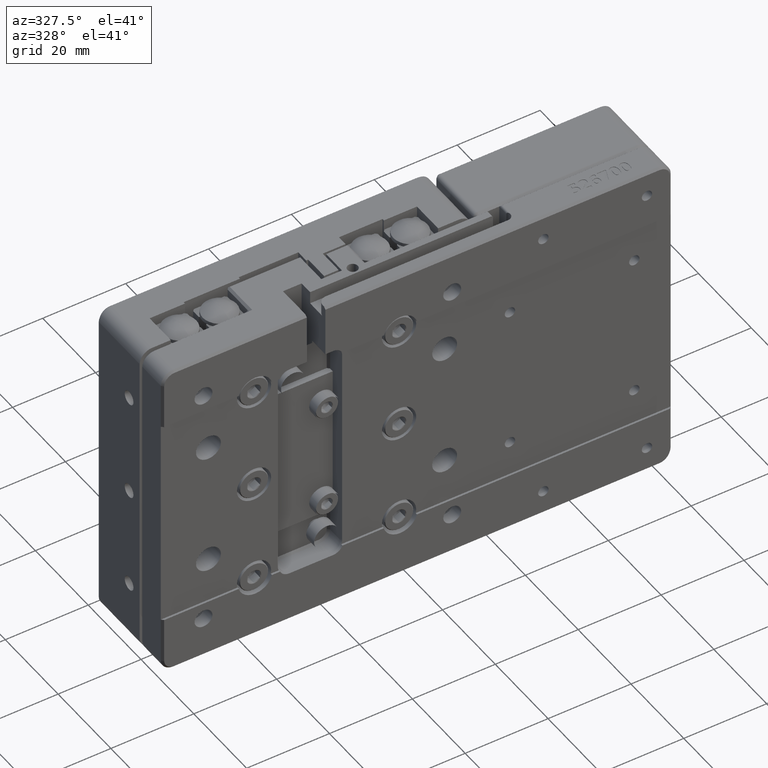
[diagram: clean part render]
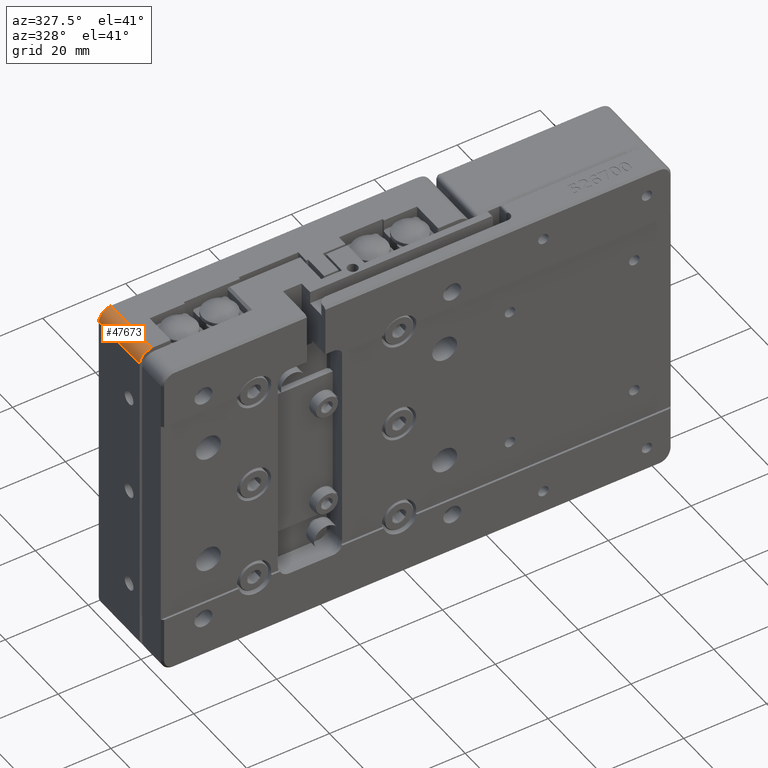
[diagram: same view with one face highlighted and labeled with its STEP entity id]
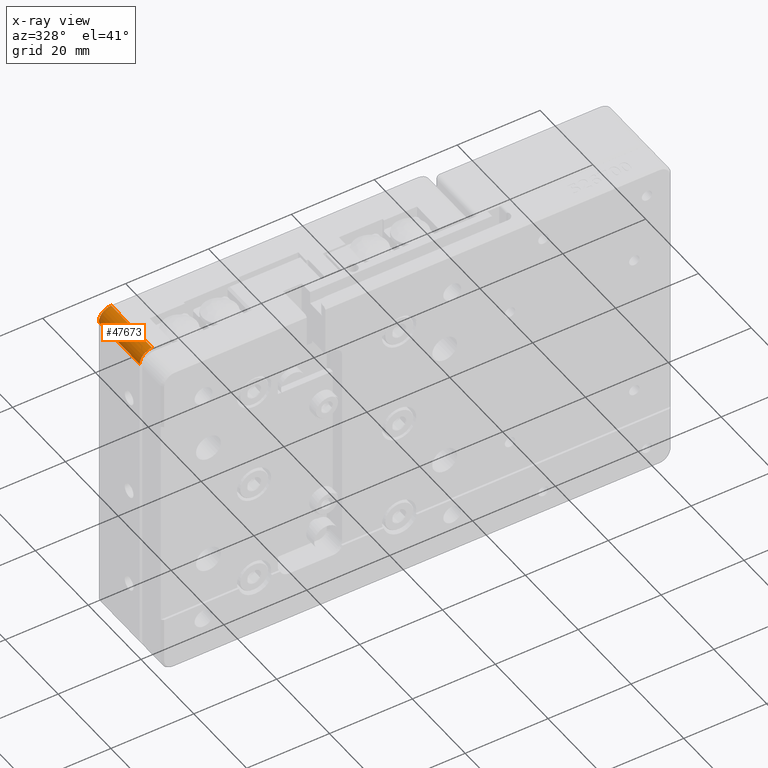
[diagram: x-ray of the same camera — body ghosted, the highlighted face saturated]
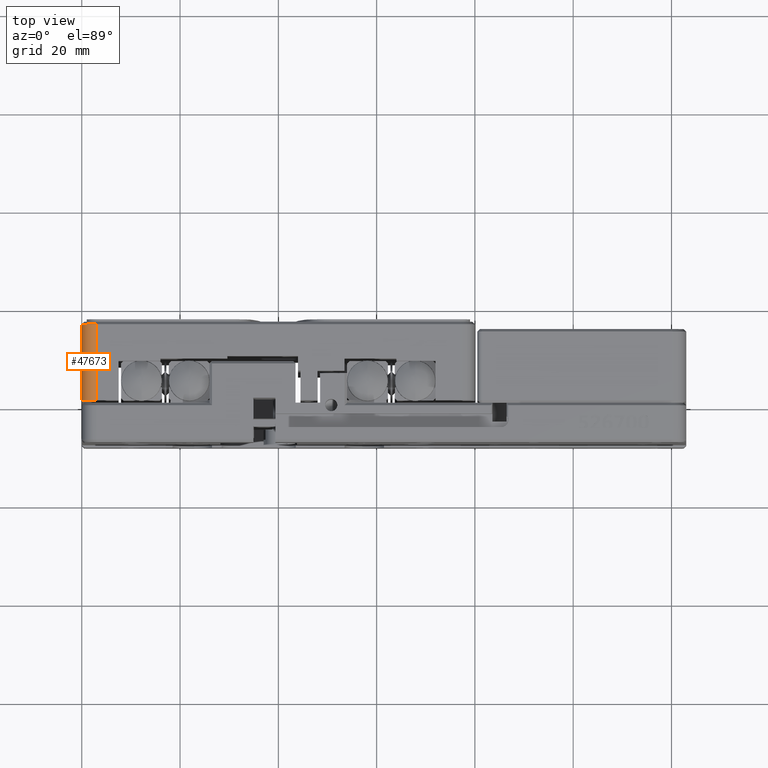
[diagram: same view with one face highlighted and labeled with its STEP entity id]
A machine part, auxiliary view. The second image highlights one B-rep face of the part: STEP entity #47673.
The next image is the same camera in x-ray: the body ghosted, the highlighted face saturated — about 0% of this face is hidden behind the body in this view.
A second angle (top view) of the same face is appended — the face is thin or edge-on in the first view.
In plain terms, the highlighted cylindrical surface (edge-blend (fillet) strip) has radius 3 mm, axis along (0, -1, 0).
Its self-contained STEP definition (entity closure, byte-faithful):
#45 = DIRECTION ( 'NONE',  ( 5.782411586589358600E-016, -1.000000000000000000, 0.0000000000000000000 ) ) ;
#2273 = EDGE_CURVE ( 'NONE', #65021, #34884, #54957, .T. ) ;
#3731 = CARTESIAN_POINT ( 'NONE',  ( -39.62135917171548300, 0.4999999999999988300, 38.51085692998680800 ) ) ;
#3998 = CARTESIAN_POINT ( 'NONE',  ( -40.00002008473701700, 16.00001268401944500, 36.99999997929843700 ) ) ;
#8808 = CARTESIAN_POINT ( 'NONE',  ( -38.84364016648287800, 0.4999999999999992800, 39.39900052241699800 ) ) ;
#9340 = EDGE_CURVE ( 'NONE', #16964, #34884, #63230, .T. ) ;
#9376 = CARTESIAN_POINT ( 'NONE',  ( -39.62139366449393000, 16.00002744930863200, 38.51087681468363400 ) ) ;
#9943 = CYLINDRICAL_SURFACE ( 'NONE', #54041, 3.000000000000002700 ) ;
#11993 = ORIENTED_EDGE ( 'NONE', *, *, #9340, .T. ) ;
#13892 = CARTESIAN_POINT ( 'NONE',  ( -37.78524365628090500, 0.4999999999999998900, 39.92191802935960300 ) ) ;
#14450 = CARTESIAN_POINT ( 'NONE',  ( -38.84366442188457600, 16.00002744930863200, 39.39903209500719300 ) ) ;
#15299 = CARTESIAN_POINT ( 'NONE',  ( -40.00000000000000000, 16.30999999999999900, 36.99999998252000200 ) ) ;
#15777 = DIRECTION ( 'NONE',  ( 1.000000000000000000, 1.156482317317870300E-015, 0.0000000000000000000 ) ) ;
#16148 = B_SPLINE_CURVE_WITH_KNOTS ( 'NONE', 3,
 ( #34490, #64701, #39565, #9376, #44629, #14450, #49637, #19545, #54712, #24574 ),
 .UNSPECIFIED., .F., .F.,
 ( 4, 2, 2, 2, 4 ),
 ( 0.0000000000000000000, 0.2500000000000000000, 0.5000000000000000000, 0.7500000000000000000, 1.000000000000000000 ),
 .UNSPECIFIED. ) ;
#16880 = VECTOR ( 'NONE', #55573, 1000.000000000000000 ) ;
#16964 = VERTEX_POINT ( 'NONE', #28230 ) ;
#18450 = LINE ( 'NONE', #15299, #16880 ) ;
#18762 = CARTESIAN_POINT ( 'NONE',  ( -40.00000000251813500, 0.4999999999999988300, 37.39269906406453000 ) ) ;
#18964 = CARTESIAN_POINT ( 'NONE',  ( -36.99999999443206600, 0.5000000000000003300, 40.00000000000000000 ) ) ;
#19545 = CARTESIAN_POINT ( 'NONE',  ( -37.78525398033129800, 16.00002744930863200, 39.92195648149854000 ) ) ;
#22340 = CARTESIAN_POINT ( 'NONE',  ( -36.99999998886412600, 0.1900000000000000000, 40.00000000000000000 ) ) ;
#24574 = CARTESIAN_POINT ( 'NONE',  ( -36.99999998471488300, 16.00001341258699500, 40.00002000070048800 ) ) ;
#28230 = CARTESIAN_POINT ( 'NONE',  ( -40.00000000000000000, 0.4999999999999998900, 36.99999998208068100 ) ) ;
#28868 = CARTESIAN_POINT ( 'NONE',  ( -39.92191803439493500, 0.4999999999999988300, 37.78524363754431900 ) ) ;
#29741 = VECTOR ( 'NONE', #62672, 1000.000000000000000 ) ;
#30148 = ORIENTED_EDGE ( 'NONE', *, *, #47506, .F. ) ;
#32898 = ORIENTED_EDGE ( 'NONE', *, *, #56089, .F. ) ;
#33932 = CARTESIAN_POINT ( 'NONE',  ( -40.00000000000000000, 0.4999999999999998900, 36.99999998208068100 ) ) ;
#34490 = CARTESIAN_POINT ( 'NONE',  ( -40.00002008473701700, 16.00001268401944500, 36.99999997929843700 ) ) ;
#34884 = VERTEX_POINT ( 'NONE', #38774 ) ;
#35562 = CARTESIAN_POINT ( 'NONE',  ( -37.00000000000000000, 15.99997162618000200, 37.00000000000000000 ) ) ;
#38382 = EDGE_LOOP ( 'NONE', ( #30148, #32898, #11993, #43789 ) ) ;
#38774 = CARTESIAN_POINT ( 'NONE',  ( -36.99999999443206600, 0.5000000000000003300, 40.00000000000000000 ) ) ;
#39003 = CARTESIAN_POINT ( 'NONE',  ( -39.39900053423921400, 0.4999999999999991700, 38.84364015109946400 ) ) ;
#39565 = CARTESIAN_POINT ( 'NONE',  ( -39.92195648361914100, 16.00002744930863600, 37.78525397244058600 ) ) ;
#43789 = ORIENTED_EDGE ( 'NONE', *, *, #2273, .F. ) ;
#44063 = CARTESIAN_POINT ( 'NONE',  ( -38.51085694679608900, 0.4999999999999995600, 39.62135916202721800 ) ) ;
#44629 = CARTESIAN_POINT ( 'NONE',  ( -39.39903209998599500, 16.00002744930863200, 38.84366441540598900 ) ) ;
#47506 = EDGE_CURVE ( 'NONE', #59418, #65021, #16148, .T. ) ;
#47673 = ADVANCED_FACE ( 'NONE', ( #50093 ), #9943, .T. ) ;
#49097 = CARTESIAN_POINT ( 'NONE',  ( -37.39269908330182800, 0.5000000000000002200, 40.00000000000000700 ) ) ;
#49637 = CARTESIAN_POINT ( 'NONE',  ( -38.51087682176270700, 16.00002744930863200, 39.62139366041380800 ) ) ;
#50093 = FACE_OUTER_BOUND ( 'NONE', #38382, .T. ) ;
#54041 = AXIS2_PLACEMENT_3D ( 'NONE', #35562, #45, #15777 ) ;
#54712 = CARTESIAN_POINT ( 'NONE',  ( -37.39270424063165900, 16.00002744930863200, 40.00003947853814200 ) ) ;
#54957 = LINE ( 'NONE', #22340, #29741 ) ;
#55573 = DIRECTION ( 'NONE',  ( 0.0000000000000000000, 1.000000000000000000, -0.0000000000000000000 ) ) ;
#56089 = EDGE_CURVE ( 'NONE', #16964, #59418, #18450, .T. ) ;
#57931 = CARTESIAN_POINT ( 'NONE',  ( -36.99999998471488300, 16.00001341258699500, 40.00002000070048800 ) ) ;
#59418 = VERTEX_POINT ( 'NONE', #3998 ) ;
#62672 = DIRECTION ( 'NONE',  ( 0.0000000000000000000, -1.000000000000000000, -0.0000000000000000000 ) ) ;
#63230 = B_SPLINE_CURVE_WITH_KNOTS ( 'NONE', 3,
 ( #33932, #18762, #28868, #3731, #39003, #8808, #44063, #13892, #49097, #18964 ),
 .UNSPECIFIED., .F., .F.,
 ( 4, 2, 2, 2, 4 ),
 ( 0.0000000000000000000, 0.2500000000000000000, 0.5000000000000000000, 0.7500000000000000000, 1.000000000000000000 ),
 .UNSPECIFIED. ) ;
#64701 = CARTESIAN_POINT ( 'NONE',  ( -40.00003947959865500, 16.00002744930863200, 37.39270423253004300 ) ) ;
#65021 = VERTEX_POINT ( 'NONE', #57931 ) ;